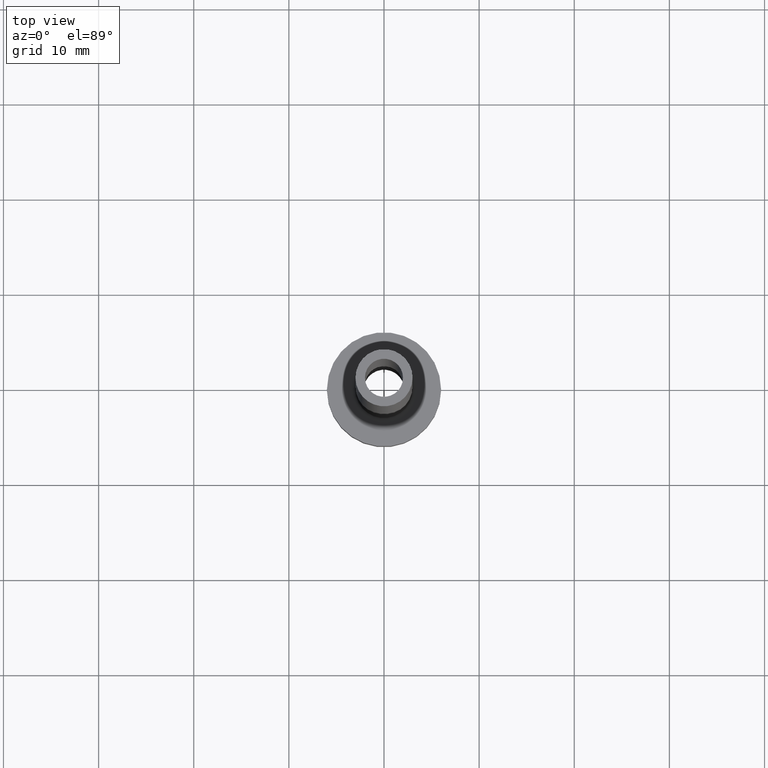
[diagram: clean part render]
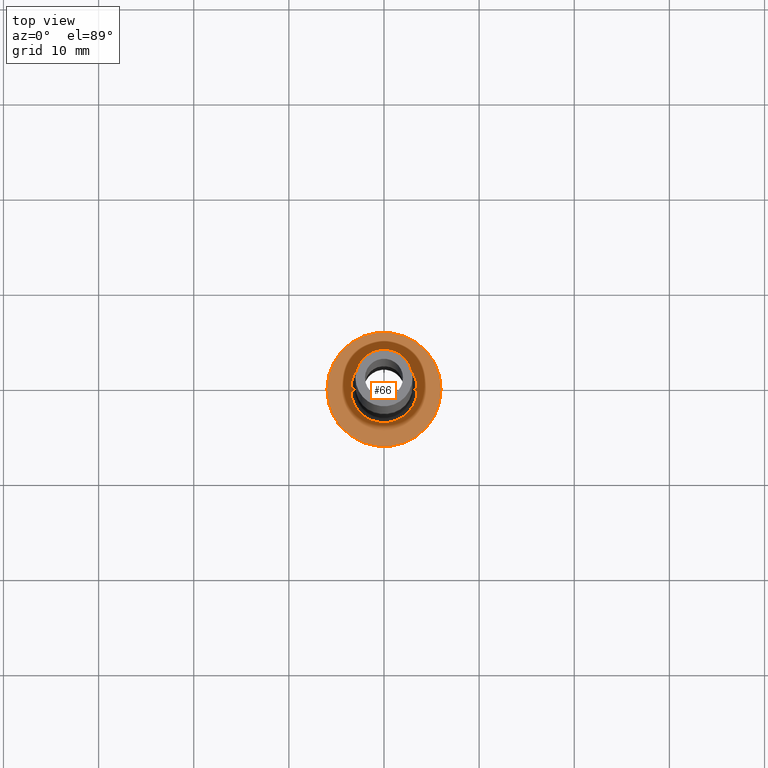
[diagram: same view with one face highlighted and labeled with its STEP entity id]
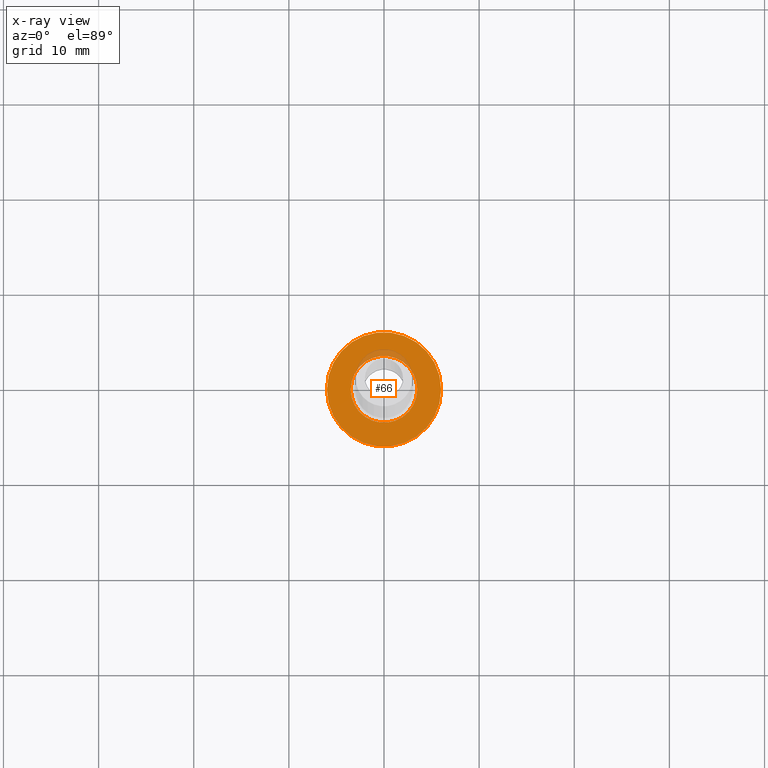
[diagram: x-ray of the same camera — body ghosted, the highlighted face saturated]
A machine part, top view. The second image highlights one B-rep face of the part: STEP entity #66.
The next image is the same camera in x-ray: the body ghosted, the highlighted face saturated — about 5% of this face is hidden behind the body in this view.
In plain terms, the highlighted planar face has unit normal (0, 0, 1).
Its self-contained STEP definition (entity closure, byte-faithful):
#22 = CARTESIAN_POINT ( 'NONE',  ( -6.000000000000000888, 0.000000000000000000, 5.000000000000000000 ) ) ;
#51 = DIRECTION ( 'NONE',  ( 1.000000000000000000, 0.000000000000000000, 0.000000000000000000 ) ) ;
#66 = ADVANCED_FACE ( 'NONE', ( #204, #109 ), #251, .T. ) ;
#79 = CIRCLE ( 'NONE', #229, 6.000000000000000888 ) ;
#101 = DIRECTION ( 'NONE',  ( 1.000000000000000000, 0.000000000000000000, 0.000000000000000000 ) ) ;
#107 = ORIENTED_EDGE ( 'NONE', *, *, #398, .T. ) ;
#108 = DIRECTION ( 'NONE',  ( 0.000000000000000000, 0.000000000000000000, 1.000000000000000000 ) ) ;
#109 = FACE_OUTER_BOUND ( 'NONE', #348, .T. ) ;
#120 = VERTEX_POINT ( 'NONE', #22 ) ;
#122 = VERTEX_POINT ( 'NONE', #197 ) ;
#132 = CARTESIAN_POINT ( 'NONE',  ( 6.000000000000000888, 7.347880794884120722E-16, 5.000000000000000000 ) ) ;
#187 = CARTESIAN_POINT ( 'NONE',  ( 0.000000000000000000, 0.000000000000000000, 5.000000000000000000 ) ) ;
#197 = CARTESIAN_POINT ( 'NONE',  ( -3.500000000000000444, 4.286263797015737088E-16, 5.000000000000002665 ) ) ;
#204 = FACE_BOUND ( 'NONE', #212, .T. ) ;
#207 = DIRECTION ( 'NONE',  ( 1.000000000000000000, 0.000000000000000000, 0.000000000000000000 ) ) ;
#210 = CIRCLE ( 'NONE', #302, 6.000000000000000888 ) ;
#212 = EDGE_LOOP ( 'NONE', ( #107, #453 ) ) ;
#218 = DIRECTION ( 'NONE',  ( 1.000000000000000000, 0.000000000000000000, 0.000000000000000000 ) ) ;
#229 = AXIS2_PLACEMENT_3D ( 'NONE', #461, #380, #207 ) ;
#233 = EDGE_CURVE ( 'NONE', #316, #120, #79, .T. ) ;
#250 = DIRECTION ( 'NONE',  ( -0.000000000000000000, -0.000000000000000000, -1.000000000000000000 ) ) ;
#251 = PLANE ( 'NONE',  #445 ) ;
#255 = CIRCLE ( 'NONE', #287, 3.500000000000000444 ) ;
#257 = VERTEX_POINT ( 'NONE', #353 ) ;
#285 = ORIENTED_EDGE ( 'NONE', *, *, #443, .T. ) ;
#287 = AXIS2_PLACEMENT_3D ( 'NONE', #396, #304, #101 ) ;
#302 = AXIS2_PLACEMENT_3D ( 'NONE', #360, #108, #51 ) ;
#304 = DIRECTION ( 'NONE',  ( -0.000000000000000000, -0.000000000000000000, -1.000000000000000000 ) ) ;
#316 = VERTEX_POINT ( 'NONE', #132 ) ;
#319 = DIRECTION ( 'NONE',  ( 0.000000000000000000, 0.000000000000000000, 1.000000000000000000 ) ) ;
#348 = EDGE_LOOP ( 'NONE', ( #285, #442 ) ) ;
#353 = CARTESIAN_POINT ( 'NONE',  ( 3.500000000000000444, 0.000000000000000000, 5.000000000000002665 ) ) ;
#354 = DIRECTION ( 'NONE',  ( 1.000000000000000000, 0.000000000000000000, -0.000000000000000000 ) ) ;
#360 = CARTESIAN_POINT ( 'NONE',  ( 0.000000000000000000, 0.000000000000000000, 5.000000000000000000 ) ) ;
#364 = CIRCLE ( 'NONE', #437, 3.500000000000000444 ) ;
#380 = DIRECTION ( 'NONE',  ( 0.000000000000000000, 0.000000000000000000, 1.000000000000000000 ) ) ;
#395 = CARTESIAN_POINT ( 'NONE',  ( 0.000000000000000000, 0.000000000000000000, 5.000000000000000000 ) ) ;
#396 = CARTESIAN_POINT ( 'NONE',  ( 0.000000000000000000, 0.000000000000000000, 5.000000000000000000 ) ) ;
#398 = EDGE_CURVE ( 'NONE', #257, #122, #255, .T. ) ;
#437 = AXIS2_PLACEMENT_3D ( 'NONE', #187, #250, #218 ) ;
#442 = ORIENTED_EDGE ( 'NONE', *, *, #233, .T. ) ;
#443 = EDGE_CURVE ( 'NONE', #120, #316, #210, .T. ) ;
#445 = AXIS2_PLACEMENT_3D ( 'NONE', #395, #319, #354 ) ;
#447 = EDGE_CURVE ( 'NONE', #122, #257, #364, .T. ) ;
#453 = ORIENTED_EDGE ( 'NONE', *, *, #447, .T. ) ;
#461 = CARTESIAN_POINT ( 'NONE',  ( 0.000000000000000000, 0.000000000000000000, 5.000000000000000000 ) ) ;